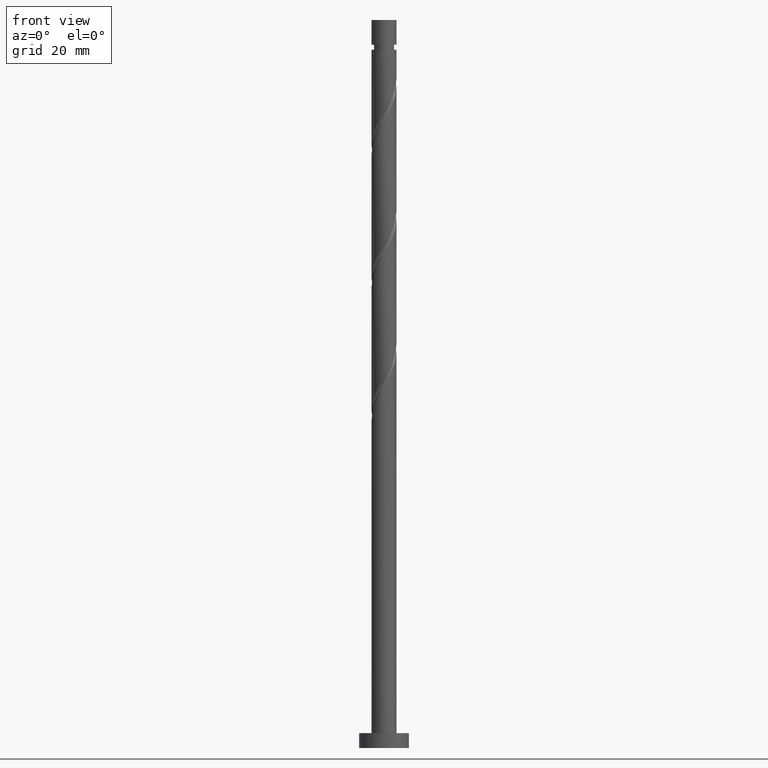
[diagram: clean part render]
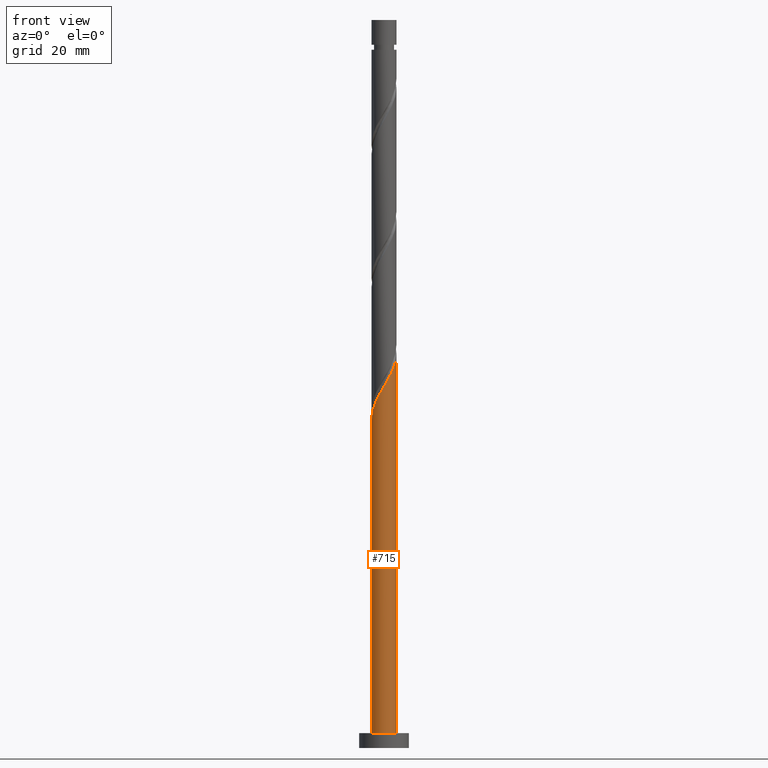
[diagram: same view with one face highlighted and labeled with its STEP entity id]
A machine part, front view. The second image highlights one B-rep face of the part: STEP entity #715.
In plain terms, the highlighted cylindrical surface (edge-blend (fillet) strip) has radius 2.5 mm, axis along (-0, -0, -1).
Its self-contained STEP definition (entity closure, byte-faithful):
#22 = CARTESIAN_POINT ( 'NONE',  ( 2.500000000000000000, 3.061616997868383141E-16, 146.0000000000000000 ) ) ;
#48 = CARTESIAN_POINT ( 'NONE',  ( -2.495863270706177417, -0.1437585960555960440, 66.08217891623394280 ) ) ;
#97 = CARTESIAN_POINT ( 'NONE',  ( 2.000754257700508632, -1.541487475360719062, 76.38520921926424023 ) ) ;
#133 = DIRECTION ( 'NONE',  ( 0.000000000000000000, 0.000000000000000000, 1.000000000000000000 ) ) ;
#145 = CARTESIAN_POINT ( 'NONE',  ( -2.500000000000003553, 5.122711090947495874E-15, 65.83878504299364920 ) ) ;
#149 = VERTEX_POINT ( 'NONE', #578 ) ;
#229 = CARTESIAN_POINT ( 'NONE',  ( -0.2129030368922535943, -2.490917962696097110, 72.14278497684000513 ) ) ;
#238 = CARTESIAN_POINT ( 'NONE',  ( 2.500000000000003109, 1.720034380902078682E-15, 79.17211837632699201 ) ) ;
#243 = CYLINDRICAL_SURFACE ( 'NONE', #1037, 2.500000000000000000 ) ;
#285 = VECTOR ( 'NONE', #1125, 1000.000000000000000 ) ;
#289 = LINE ( 'NONE', #22, #1662 ) ;
#295 = CARTESIAN_POINT ( 'NONE',  ( -2.233329684002606452, -1.179593048026943869, 67.90036073441577003 ) ) ;
#348 = CARTESIAN_POINT ( 'NONE',  ( 0.4974937185533105932, -2.450000000000003286, 73.35490618896122328 ) ) ;
#364 = VERTEX_POINT ( 'NONE', #238 ) ;
#372 = ORIENTED_EDGE ( 'NONE', *, *, #518, .F. ) ;
#375 = FACE_OUTER_BOUND ( 'NONE', #1182, .T. ) ;
#383 = DIRECTION ( 'NONE',  ( 1.000000000000000000, 0.000000000000000000, 0.000000000000000000 ) ) ;
#441 = VERTEX_POINT ( 'NONE', #145 ) ;
#473 = CARTESIAN_POINT ( 'NONE',  ( -2.500000000000000000, 0.000000000000000000, 146.0000000000000000 ) ) ;
#489 = CARTESIAN_POINT ( 'NONE',  ( -1.525797355502945374, -1.980389464206532946, 69.71854255259756883 ) ) ;
#518 = EDGE_CURVE ( 'NONE', #441, #364, #730, .T. ) ;
#551 = CARTESIAN_POINT ( 'NONE',  ( -2.354261794510398964, -0.8411013035946938166, 67.29430012835516095 ) ) ;
#554 = AXIS2_PLACEMENT_3D ( 'NONE', #1309, #133, #383 ) ;
#578 = CARTESIAN_POINT ( 'NONE',  ( -2.500000000000000000, 0.000000000000000000, 3.000000000000000000 ) ) ;
#579 = CARTESIAN_POINT ( 'NONE',  ( 2.500000000000004441, -0.2863223184628076456, 78.68615842335570676 ) ) ;
#598 = CARTESIAN_POINT ( 'NONE',  ( -0.9060516544719222631, -2.330036566114083385, 70.93066376471875856 ) ) ;
#599 = CARTESIAN_POINT ( 'NONE',  ( 0.000000000000000000, 0.000000000000000000, 146.0000000000000000 ) ) ;
#674 = CARTESIAN_POINT ( 'NONE',  ( -2.500000000000003553, 5.122711090947495874E-15, 65.83878504299364920 ) ) ;
#683 = CARTESIAN_POINT ( 'NONE',  ( -2.021932029057392555, -1.470302985738610513, 68.50642134047635068 ) ) ;
#715 = ADVANCED_FACE ( 'NONE', ( #375 ), #243, .T. ) ;
#730 =( BOUNDED_CURVE ( )  B_SPLINE_CURVE ( 2, ( #674, #1312, #48, #1443, #551, #295, #683, #1586, #489, #737, #598, #1647, #229, #861, #348, #843, #1119, #1611, #1481, #97, #999, #1247, #982, #579, #1369 ),
 .UNSPECIFIED., .F., .T. ) 
 B_SPLINE_CURVE_WITH_KNOTS ( ( 3, 2, 2, 2, 2, 2, 2, 2, 2, 2, 2, 2, 3 ),
 ( 0.05452521624175106496, 0.05681818181818176772, 0.06818181818181823228, 0.07954545454545458583, 0.09090909090909093937, 0.1022727272727272929, 0.1136363636363636465, 0.1250000000000000000, 0.1363636363636363535, 0.1477272727272727071, 0.1590909090909090606, 0.1704545454545454142, 0.1795252162417512731 ),
 .UNSPECIFIED. ) 
 CURVE ( )  GEOMETRIC_REPRESENTATION_ITEM ( )  RATIONAL_B_SPLINE_CURVE ( ( 0.9061101570135647876, 0.9072237824201470069, 0.9090909090909247148, 0.8998376744372269531, 0.9090909090909247148, 0.8998376744372269531, 0.9090909090909247148, 0.8998376744372269531, 0.9090909090909247148, 0.8998376744372269531, 0.9090909090909247148, 0.8998376744372269531, 0.9090909090909247148, 0.8998376744372269531, 0.9090909090909247148, 0.8998376744372269531, 0.9090909090909247148, 0.8998376744372269531, 0.9090909090909247148, 0.8998376744372269531, 0.9090909090909247148, 0.8998376744372269531, 0.9090909090909247148, 0.9017048011080044390, 0.9061101570135650096 ) ) 
 REPRESENTATION_ITEM ( '' )  );
#737 = CARTESIAN_POINT ( 'NONE',  ( -1.241060336893712091, -2.199766004962788735, 70.32460315865817790 ) ) ;
#748 = DIRECTION ( 'NONE',  ( -0.000000000000000000, -0.000000000000000000, -1.000000000000000000 ) ) ;
#764 = EDGE_CURVE ( 'NONE', #441, #149, #1382, .T. ) ;
#808 = CIRCLE ( 'NONE', #554, 2.500000000000000000 ) ;
#827 = ORIENTED_EDGE ( 'NONE', *, *, #1065, .F. ) ;
#843 = CARTESIAN_POINT ( 'NONE',  ( 0.8497505388409957172, -2.378471201873193941, 73.96096679502181814 ) ) ;
#859 = EDGE_CURVE ( 'NONE', #149, #1194, #808, .T. ) ;
#861 = CARTESIAN_POINT ( 'NONE',  ( 0.1452368982656256635, -2.521528798126814408, 72.74884558290061420 ) ) ;
#982 = CARTESIAN_POINT ( 'NONE',  ( 2.435264748179753358, -0.5652305779706359168, 78.20339103744605325 ) ) ;
#999 = CARTESIAN_POINT ( 'NONE',  ( 2.177375558832926217, -1.228428132125369387, 76.99126982532483510 ) ) ;
#1037 = AXIS2_PLACEMENT_3D ( 'NONE', #599, #748, #1270 ) ;
#1065 = EDGE_CURVE ( 'NONE', #364, #1194, #289, .T. ) ;
#1117 = ORIENTED_EDGE ( 'NONE', *, *, #859, .T. ) ;
#1119 = CARTESIAN_POINT ( 'NONE',  ( 1.167586491630753232, -2.210597608014947202, 74.56702740108239880 ) ) ;
#1125 = DIRECTION ( 'NONE',  ( -0.000000000000000000, -0.000000000000000000, -1.000000000000000000 ) ) ;
#1182 = EDGE_LOOP ( 'NONE', ( #827, #372, #1190, #1117 ) ) ;
#1190 = ORIENTED_EDGE ( 'NONE', *, *, #764, .T. ) ;
#1194 = VERTEX_POINT ( 'NONE', #1220 ) ;
#1220 = CARTESIAN_POINT ( 'NONE',  ( 2.500000000000000000, 3.061616997868383141E-16, 3.000000000000000000 ) ) ;
#1247 = CARTESIAN_POINT ( 'NONE',  ( 2.353996859965342914, -0.9153687888900188252, 77.59733043138547259 ) ) ;
#1270 = DIRECTION ( 'NONE',  ( -1.000000000000000000, 0.000000000000000000, 0.000000000000000000 ) ) ;
#1309 = CARTESIAN_POINT ( 'NONE',  ( 0.000000000000000000, 0.000000000000000000, 3.000000000000000000 ) ) ;
#1312 = CARTESIAN_POINT ( 'NONE',  ( -2.500000000000003997, -0.07193881630954880591, 65.96088304771187438 ) ) ;
#1369 = CARTESIAN_POINT ( 'NONE',  ( 2.500000000000003109, 1.720034380902078682E-15, 79.17211837632699201 ) ) ;
#1382 = LINE ( 'NONE', #473, #285 ) ;
#1443 = CARTESIAN_POINT ( 'NONE',  ( -2.475193905018191920, -0.5026095591624446524, 66.68823952229455188 ) ) ;
#1481 = CARTESIAN_POINT ( 'NONE',  ( 1.743088351060509744, -1.792105744758709873, 75.77914861320363116 ) ) ;
#1570 = DIRECTION ( 'NONE',  ( -0.000000000000000000, -0.000000000000000000, -1.000000000000000000 ) ) ;
#1586 = CARTESIAN_POINT ( 'NONE',  ( -1.810534374112179767, -1.761012923450277379, 69.11248194653697396 ) ) ;
#1611 = CARTESIAN_POINT ( 'NONE',  ( 1.485422444420511967, -2.042724014156701351, 75.17308800714303629 ) ) ;
#1647 = CARTESIAN_POINT ( 'NONE',  ( -0.5710429720501331019, -2.460307127265380256, 71.53672437077942448 ) ) ;
#1662 = VECTOR ( 'NONE', #1570, 1000.000000000000000 ) ;